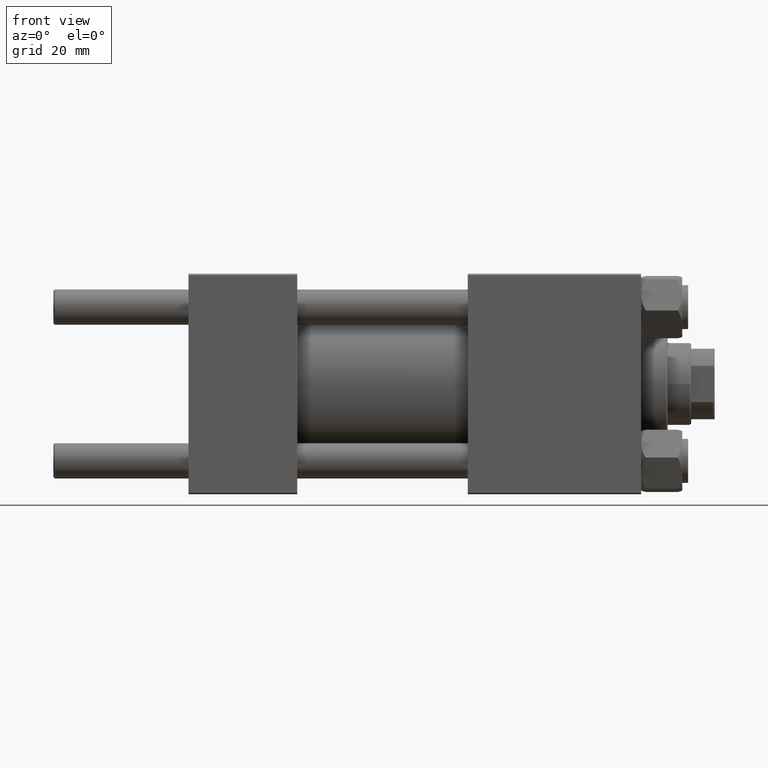
[diagram: clean part render]
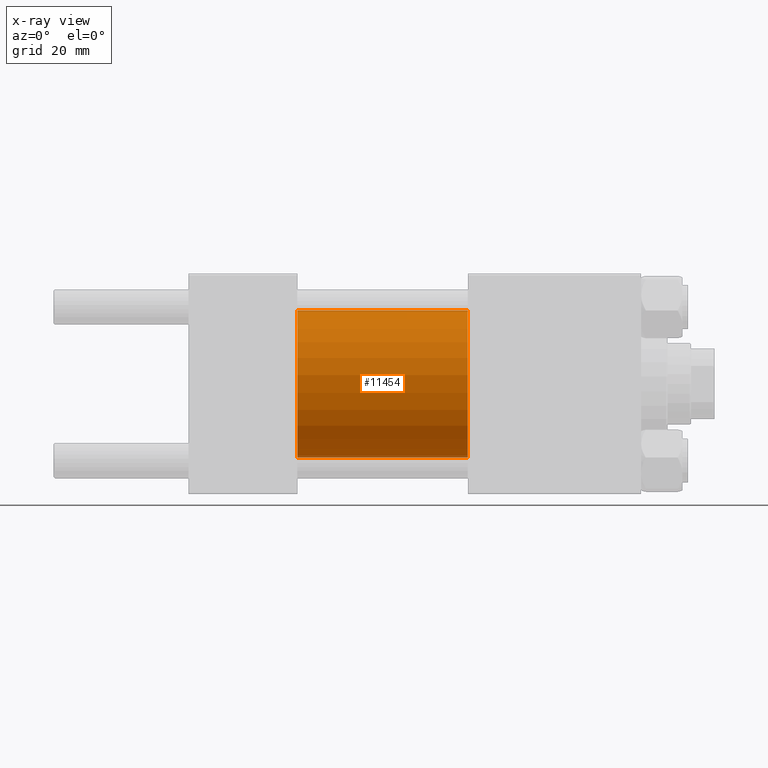
[diagram: x-ray — body ghosted, one internal face saturated and labeled with its STEP entity id]
A machine part, front view, then the same camera in x-ray: the body is ghosted and one INTERNAL B-rep face — a face not visible from any outside direction — is saturated and labeled: STEP entity #11454.
In plain terms, the highlighted cylindrical surface (partial cylindrical patch) has radius 25 mm, axis along (-1, -0, -0).
Its self-contained STEP definition (entity closure, byte-faithful):
#422 = CARTESIAN_POINT ( 'NONE',  ( 95.00000000000000000, 3.061616997868382254E-15, -25.00000000000000000 ) ) ;
#2145 = CARTESIAN_POINT ( 'NONE',  ( 37.00000000000000000, 0.000000000000000000, 25.00000000000000000 ) ) ;
#2424 = FACE_OUTER_BOUND ( 'NONE', #34638, .T. ) ;
#4261 = EDGE_CURVE ( 'NONE', #43764, #19668, #12505, .T. ) ;
#4495 = DIRECTION ( 'NONE',  ( 0.000000000000000000, 0.000000000000000000, -1.000000000000000000 ) ) ;
#6971 = AXIS2_PLACEMENT_3D ( 'NONE', #24469, #10029, #47177 ) ;
#9232 = EDGE_CURVE ( 'NONE', #45439, #9286, #47146, .T. ) ;
#9286 = VERTEX_POINT ( 'NONE', #32566 ) ;
#10029 = DIRECTION ( 'NONE',  ( -1.000000000000000000, -0.000000000000000000, -0.000000000000000000 ) ) ;
#11454 = ADVANCED_FACE ( 'NONE', ( #2424 ), #39132, .F. ) ;
#11587 = ORIENTED_EDGE ( 'NONE', *, *, #23616, .F. ) ;
#12505 = CIRCLE ( 'NONE', #17308, 25.00000000000000000 ) ;
#13701 = VECTOR ( 'NONE', #35888, 1000.000000000000000 ) ;
#16468 = CARTESIAN_POINT ( 'NONE',  ( 95.00000000000000000, 3.061616997868382254E-15, -25.00000000000000000 ) ) ;
#17308 = AXIS2_PLACEMENT_3D ( 'NONE', #27473, #23668, #4495 ) ;
#18958 = CARTESIAN_POINT ( 'NONE',  ( 95.00000000000000000, 0.000000000000000000, 25.00000000000000000 ) ) ;
#19668 = VERTEX_POINT ( 'NONE', #422 ) ;
#22993 = AXIS2_PLACEMENT_3D ( 'NONE', #28056, #30837, #23263 ) ;
#23263 = DIRECTION ( 'NONE',  ( 0.000000000000000000, 0.000000000000000000, -1.000000000000000000 ) ) ;
#23616 = EDGE_CURVE ( 'NONE', #43764, #45439, #34083, .T. ) ;
#23668 = DIRECTION ( 'NONE',  ( 1.000000000000000000, 0.000000000000000000, 0.000000000000000000 ) ) ;
#24469 = CARTESIAN_POINT ( 'NONE',  ( 95.00000000000000000, 0.000000000000000000, 0.000000000000000000 ) ) ;
#24521 = LINE ( 'NONE', #16468, #13701 ) ;
#24684 = VECTOR ( 'NONE', #38134, 1000.000000000000000 ) ;
#27473 = CARTESIAN_POINT ( 'NONE',  ( 95.00000000000000000, 0.000000000000000000, 0.000000000000000000 ) ) ;
#28056 = CARTESIAN_POINT ( 'NONE',  ( 37.00000000000000000, 0.000000000000000000, 0.000000000000000000 ) ) ;
#29262 = ORIENTED_EDGE ( 'NONE', *, *, #4261, .T. ) ;
#30837 = DIRECTION ( 'NONE',  ( 1.000000000000000000, 0.000000000000000000, 0.000000000000000000 ) ) ;
#32228 = EDGE_CURVE ( 'NONE', #19668, #9286, #24521, .T. ) ;
#32566 = CARTESIAN_POINT ( 'NONE',  ( 37.00000000000000000, 3.061616997868382254E-15, -25.00000000000000000 ) ) ;
#34083 = LINE ( 'NONE', #18958, #24684 ) ;
#34638 = EDGE_LOOP ( 'NONE', ( #29262, #49183, #47092, #11587 ) ) ;
#35888 = DIRECTION ( 'NONE',  ( -1.000000000000000000, -0.000000000000000000, -0.000000000000000000 ) ) ;
#38134 = DIRECTION ( 'NONE',  ( -1.000000000000000000, -0.000000000000000000, -0.000000000000000000 ) ) ;
#39132 = CYLINDRICAL_SURFACE ( 'NONE', #6971, 25.00000000000000000 ) ;
#43764 = VERTEX_POINT ( 'NONE', #47673 ) ;
#45439 = VERTEX_POINT ( 'NONE', #2145 ) ;
#47092 = ORIENTED_EDGE ( 'NONE', *, *, #9232, .F. ) ;
#47146 = CIRCLE ( 'NONE', #22993, 25.00000000000000000 ) ;
#47177 = DIRECTION ( 'NONE',  ( 0.000000000000000000, 0.000000000000000000, 1.000000000000000000 ) ) ;
#47673 = CARTESIAN_POINT ( 'NONE',  ( 95.00000000000000000, 0.000000000000000000, 25.00000000000000000 ) ) ;
#49183 = ORIENTED_EDGE ( 'NONE', *, *, #32228, .T. ) ;